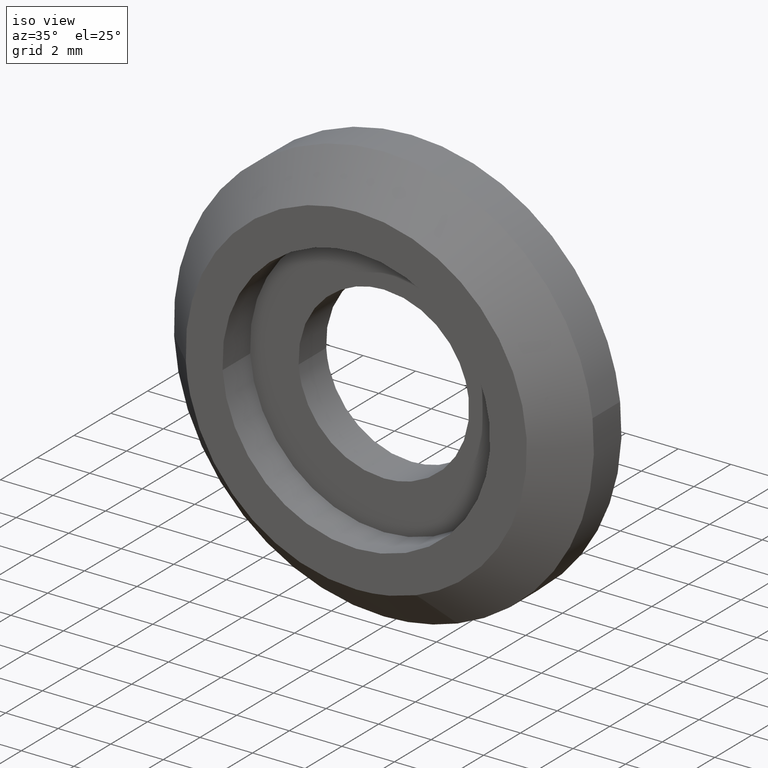
[diagram: clean part render]
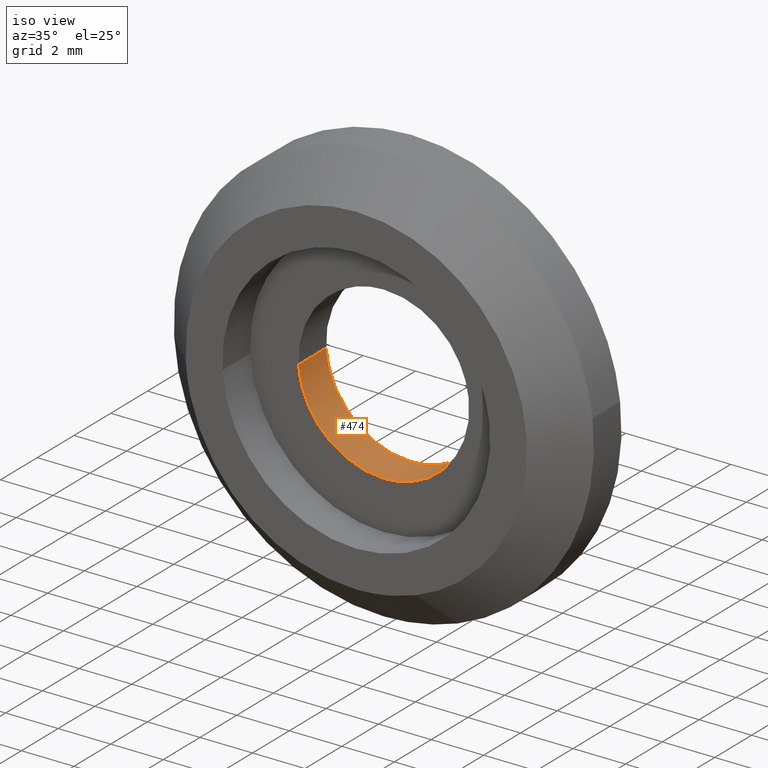
[diagram: same view with one face highlighted and labeled with its STEP entity id]
A machine part, iso view. The second image highlights one B-rep face of the part: STEP entity #474.
In plain terms, the highlighted face is a freeform B-spline surface patch.
Its self-contained STEP definition (entity closure, byte-faithful):
#372=CARTESIAN_POINT('',(3.227280960681916,-0.037500000000000,0.383611262634465));
#373=CARTESIAN_POINT('',(3.238259750207968,-0.037500000000000,0.291247868073427));
#374=CARTESIAN_POINT('',(3.243938094871067,-0.037500000000000,0.198407753488285));
#375=CARTESIAN_POINT('',(3.442345848359353,-0.037500000000000,-3.045530341382781));
#376=CARTESIAN_POINT('',(0.198407753488285,-0.037500000000000,-3.243938094871067));
#377=CARTESIAN_POINT('',(-3.045530341382781,-0.037500000000000,-3.442345848359353));
#378=CARTESIAN_POINT('',(-3.243938094871067,-0.037500000000000,-0.198407753488285));
#379=CARTESIAN_POINT('',(3.227280960681916,1.538437500000000,0.383611262634465));
#380=CARTESIAN_POINT('',(3.238259750207968,1.538437500000001,0.291247868073427));
#381=CARTESIAN_POINT('',(3.243938094871067,1.538437500000000,0.198407753488285));
#382=CARTESIAN_POINT('',(3.442345848359353,1.538437500000001,-3.045530341382781));
#383=CARTESIAN_POINT('',(0.198407753488285,1.538437500000000,-3.243938094871067));
#384=CARTESIAN_POINT('',(-3.045530341382781,1.538437500000001,-3.442345848359353));
#385=CARTESIAN_POINT('',(-3.243938094871067,1.538437500000000,-0.198407753488285));
#393=(BOUNDED_SURFACE()B_SPLINE_SURFACE(2,1,((#372,#379),(#373,#380),(#374,#381),(#375,#382),(#376,#383),(#377,#384),(#378,#385)),.UNSPECIFIED.,.F.,.F.,.U.)B_SPLINE_SURFACE_WITH_KNOTS((3,2,2,3),(2,2),(0.0,0.215391052434010,5.600167363284244,10.984943674134479),(0.0,1.0),.UNSPECIFIED.)GEOMETRIC_REPRESENTATION_ITEM()RATIONAL_B_SPLINE_SURFACE(((0.977505800795127,0.977505800795127),(0.988284271247462,0.988284271247462),(1.0,1.0),(0.707106781186548,0.707106781186548),(1.0,1.0),(0.707106781186548,0.707106781186548),(1.0,1.0)))REPRESENTATION_ITEM('')SURFACE());
#394=CARTESIAN_POINT('',(3.227281486811727,1.500000000000071,0.383606836308235));
#395=VERTEX_POINT('',#394);
#396=CARTESIAN_POINT('',(0.0,1.500000000000000,-3.250000000000000));
#397=VERTEX_POINT('',#396);
#398=CARTESIAN_POINT('',(3.227281486811727,1.500000000000071,0.383606836308235));
#399=CARTESIAN_POINT('',(3.250000000000000,1.500000000000000,0.192476152308770));
#400=CARTESIAN_POINT('',(3.250000000000000,1.500000000000000,0.0));
#401=CARTESIAN_POINT('',(3.250000000000000,1.500000000000000,-3.250000000000000));
#402=CARTESIAN_POINT('',(0.0,1.500000000000000,-3.250000000000000));
#410=(BOUNDED_CURVE()B_SPLINE_CURVE(2,(#398,#399,#400,#401,#402),.UNSPECIFIED.,.F.,.U.)B_SPLINE_CURVE_WITH_KNOTS((3,2,3),(0.229562705309400,0.250000000000000,0.500000000000000),.UNSPECIFIED.)CURVE()GEOMETRIC_REPRESENTATION_ITEM()RATIONAL_B_SPLINE_CURVE((0.956027208513637,0.976056219896924,1.0,0.707106781186547,1.0))REPRESENTATION_ITEM(''));
#411=EDGE_CURVE('',#395,#397,#410,.T.);
#412=ORIENTED_EDGE('',*,*,#411,.T.);
#413=CARTESIAN_POINT('',(-3.243938286670342,1.499999999999952,-0.198404617548119));
#414=VERTEX_POINT('',#413);
#415=CARTESIAN_POINT('',(0.0,1.500000000000000,-3.250000000000000));
#416=CARTESIAN_POINT('',(-3.057297678478167,1.500000000000000,-3.250000000000000));
#417=CARTESIAN_POINT('',(-3.243938286670342,1.499999999999951,-0.198404617548119));
#425=(BOUNDED_CURVE()B_SPLINE_CURVE(2,(#415,#416,#417),.UNSPECIFIED.,.F.,.U.)B_SPLINE_CURVE_WITH_KNOTS((3,3),(0.500000000000000,0.739333129044312),.UNSPECIFIED.)CURVE()GEOMETRIC_REPRESENTATION_ITEM()RATIONAL_B_SPLINE_CURVE((1.0,0.719603797862065,0.976072399162636))REPRESENTATION_ITEM(''));
#426=EDGE_CURVE('',#397,#414,#425,.T.);
#427=ORIENTED_EDGE('',*,*,#426,.T.);
#428=CARTESIAN_POINT('',(-3.243938284306497,3.469447E-017,-0.198404656197849));
#429=VERTEX_POINT('',#428);
#430=CARTESIAN_POINT('',(-3.243938284306497,3.469447E-017,-0.198404656197849));
#431=CARTESIAN_POINT('',(-3.243938286670342,1.499999999999952,-0.198404617548119));
#432=QUASI_UNIFORM_CURVE('',1,(#430,#431),.UNSPECIFIED.,.F.,.U.);
#433=EDGE_CURVE('',#429,#414,#432,.T.);
#434=ORIENTED_EDGE('',*,*,#433,.F.);
#435=CARTESIAN_POINT('',(0.0,0.0,-3.250000000000000));
#436=VERTEX_POINT('',#435);
#437=CARTESIAN_POINT('',(0.0,0.0,-3.250000000000000));
#438=CARTESIAN_POINT('',(-3.057297641984092,0.0,-3.250000000000000));
#439=CARTESIAN_POINT('',(-3.243938284306497,3.469447E-017,-0.198404656197849));
#447=(BOUNDED_CURVE()B_SPLINE_CURVE(2,(#437,#438,#439),.UNSPECIFIED.,.F.,.U.)B_SPLINE_CURVE_WITH_KNOTS((3,3),(0.500000000000000,0.739333126988512),.UNSPECIFIED.)CURVE()GEOMETRIC_REPRESENTATION_ITEM()RATIONAL_B_SPLINE_CURVE((1.0,0.719603800270584,0.976072394756659))REPRESENTATION_ITEM(''));
#448=EDGE_CURVE('',#436,#429,#447,.T.);
#449=ORIENTED_EDGE('',*,*,#448,.F.);
#450=CARTESIAN_POINT('',(3.227281480315944,3.194357E-017,0.383606890957840));
#451=VERTEX_POINT('',#450);
#452=CARTESIAN_POINT('',(3.227281480315944,3.194357E-017,0.383606890957840));
#453=CARTESIAN_POINT('',(3.250000000000000,0.0,0.192476179922436));
#454=CARTESIAN_POINT('',(3.250000000000000,0.0,0.0));
#455=CARTESIAN_POINT('',(3.250000000000000,0.0,-3.250000000000000));
#456=CARTESIAN_POINT('',(0.0,0.0,-3.250000000000000));
#464=(BOUNDED_CURVE()B_SPLINE_CURVE(2,(#452,#453,#454,#455,#456),.UNSPECIFIED.,.F.,.U.)B_SPLINE_CURVE_WITH_KNOTS((3,2,3),(0.229562702447560,0.250000000000000,0.500000000000000),.UNSPECIFIED.)CURVE()GEOMETRIC_REPRESENTATION_ITEM()RATIONAL_B_SPLINE_CURVE((0.956027202904301,0.976056216544070,1.0,0.707106781186547,1.0))REPRESENTATION_ITEM(''));
#465=EDGE_CURVE('',#451,#436,#464,.T.);
#466=ORIENTED_EDGE('',*,*,#465,.F.);
#467=CARTESIAN_POINT('',(3.227281480315944,3.194357E-017,0.383606890957840));
#468=CARTESIAN_POINT('',(3.227281486811727,1.500000000000071,0.383606836308235));
#469=QUASI_UNIFORM_CURVE('',1,(#467,#468),.UNSPECIFIED.,.F.,.U.);
#470=EDGE_CURVE('',#451,#395,#469,.T.);
#471=ORIENTED_EDGE('',*,*,#470,.T.);
#472=EDGE_LOOP('',(#412,#427,#434,#449,#466,#471));
#473=FACE_OUTER_BOUND('',#472,.T.);
#474=ADVANCED_FACE('',(#473),#393,.F.);